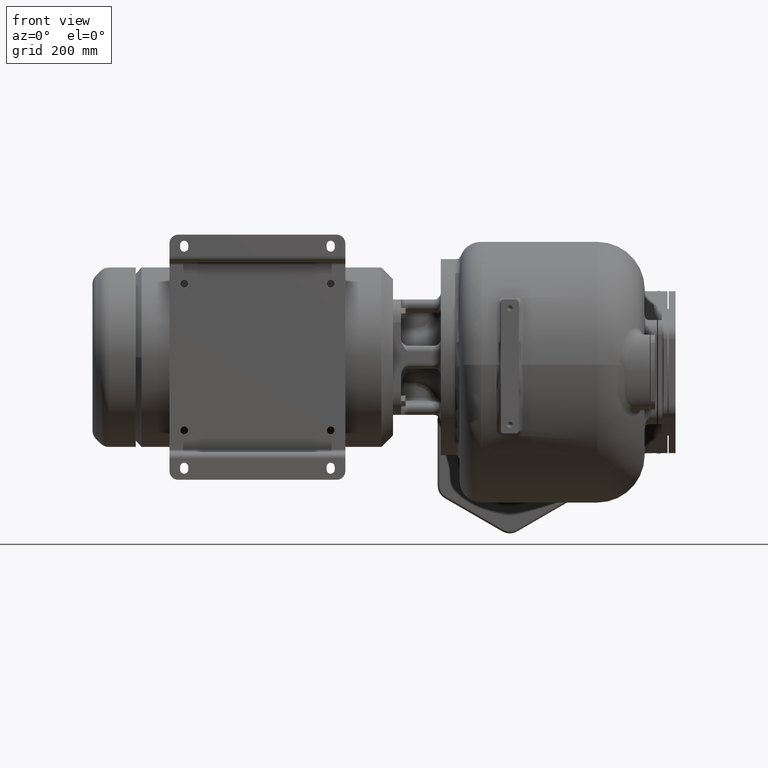
[diagram: clean part render]
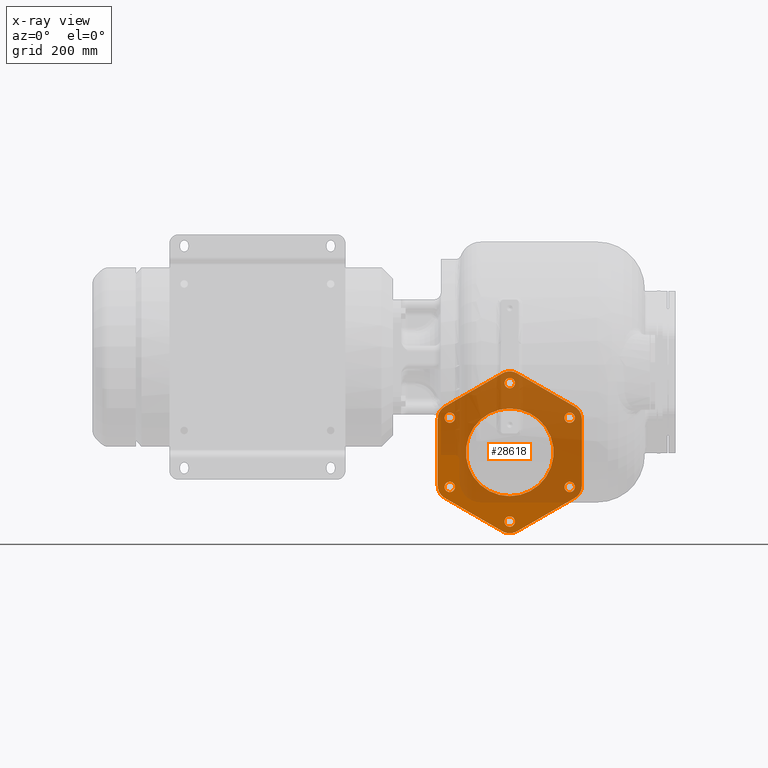
[diagram: x-ray — body ghosted, one internal face saturated and labeled with its STEP entity id]
A machine part, front view, then the same camera in x-ray: the body is ghosted and one INTERNAL B-rep face — a face not visible from any outside direction — is saturated and labeled: STEP entity #28618.
In plain terms, the highlighted planar face has unit normal (0, 1, 0).
Its self-contained STEP definition (entity closure, byte-faithful):
#28013=CARTESIAN_POINT('',(1.E2,5.52E2,-1.072649730810E2));
#28014=DIRECTION('',(0.E0,-1.E0,0.E0));
#28015=DIRECTION('',(1.E0,0.E0,0.E0));
#28016=AXIS2_PLACEMENT_3D('',#28013,#28014,#28015);
#28018=DIRECTION('',(0.E0,0.E0,1.E0));
#28019=VECTOR('',#28018,1.154700538379E2);
#28020=CARTESIAN_POINT('',(1.25E2,5.52E2,-2.227350269190E2));
#28021=LINE('',#28020,#28019);
#28022=CARTESIAN_POINT('',(1.E2,5.52E2,-2.227350269190E2));
#28023=DIRECTION('',(0.E0,-1.E0,0.E0));
#28024=DIRECTION('',(5.E-1,0.E0,-8.660254037844E-1));
#28025=AXIS2_PLACEMENT_3D('',#28022,#28023,#28024);
#28027=DIRECTION('',(8.660254037844E-1,0.E0,5.E-1));
#28028=VECTOR('',#28027,1.154700538379E2);
#28029=CARTESIAN_POINT('',(1.25E1,5.52E2,-3.021206889325E2));
#28030=LINE('',#28029,#28028);
#28031=CARTESIAN_POINT('',(-1.362119714437E-14,5.52E2,-2.804700538379E2));
#28032=DIRECTION('',(0.E0,-1.E0,0.E0));
#28033=DIRECTION('',(-5.E-1,0.E0,-8.660254037844E-1));
#28034=AXIS2_PLACEMENT_3D('',#28031,#28032,#28033);
#28036=DIRECTION('',(8.660254037844E-1,0.E0,-5.E-1));
#28037=VECTOR('',#28036,1.154700538379E2);
#28038=CARTESIAN_POINT('',(-1.125E2,5.52E2,-2.443856620136E2));
#28039=LINE('',#28038,#28037);
#28040=CARTESIAN_POINT('',(-1.E2,5.52E2,-2.227350269190E2));
#28041=DIRECTION('',(0.E0,-1.E0,0.E0));
#28042=DIRECTION('',(-1.E0,0.E0,0.E0));
#28043=AXIS2_PLACEMENT_3D('',#28040,#28041,#28042);
#28045=DIRECTION('',(0.E0,0.E0,-1.E0));
#28046=VECTOR('',#28045,1.154700538379E2);
#28047=CARTESIAN_POINT('',(-1.25E2,5.52E2,-1.072649730810E2));
#28048=LINE('',#28047,#28046);
#28049=CARTESIAN_POINT('',(-1.E2,5.52E2,-1.072649730810E2));
#28050=DIRECTION('',(0.E0,-1.E0,0.E0));
#28051=DIRECTION('',(-5.E-1,0.E0,8.660254037844E-1));
#28052=AXIS2_PLACEMENT_3D('',#28049,#28050,#28051);
#28054=DIRECTION('',(-8.660254037844E-1,0.E0,-5.E-1));
#28055=VECTOR('',#28054,1.154700538379E2);
#28056=CARTESIAN_POINT('',(-1.25E1,5.52E2,-2.787931106746E1));
#28057=LINE('',#28056,#28055);
#28058=CARTESIAN_POINT('',(1.362120489790E-14,5.52E2,-4.952994616208E1));
#28059=DIRECTION('',(0.E0,-1.E0,0.E0));
#28060=DIRECTION('',(5.E-1,0.E0,8.660254037844E-1));
#28061=AXIS2_PLACEMENT_3D('',#28058,#28059,#28060);
#28063=DIRECTION('',(-8.660254037844E-1,0.E0,5.E-1));
#28064=VECTOR('',#28063,1.154700538379E2);
#28065=CARTESIAN_POINT('',(1.125E2,5.52E2,-8.561433798643E1));
#28066=LINE('',#28065,#28064);
#28067=CARTESIAN_POINT('',(0.E0,5.52E2,-1.65E2));
#28068=DIRECTION('',(0.E0,-1.E0,0.E0));
#28069=DIRECTION('',(0.E0,0.E0,-1.E0));
#28070=AXIS2_PLACEMENT_3D('',#28067,#28068,#28069);
#28072=CARTESIAN_POINT('',(0.E0,5.52E2,-1.65E2));
#28073=DIRECTION('',(0.E0,-1.E0,0.E0));
#28074=DIRECTION('',(0.E0,0.E0,1.E0));
#28075=AXIS2_PLACEMENT_3D('',#28072,#28073,#28074);
#28077=CARTESIAN_POINT('',(-1.039230484541E2,5.52E2,-2.25E2));
#28078=DIRECTION('',(0.E0,1.E0,0.E0));
#28079=DIRECTION('',(0.E0,0.E0,1.E0));
#28080=AXIS2_PLACEMENT_3D('',#28077,#28078,#28079);
#28082=CARTESIAN_POINT('',(-1.039230484541E2,5.52E2,-2.25E2));
#28083=DIRECTION('',(0.E0,1.E0,0.E0));
#28084=DIRECTION('',(0.E0,0.E0,-1.E0));
#28085=AXIS2_PLACEMENT_3D('',#28082,#28083,#28084);
#28087=CARTESIAN_POINT('',(-2.842170249202E-14,5.52E2,-2.85E2));
#28088=DIRECTION('',(0.E0,1.E0,0.E0));
#28089=DIRECTION('',(-8.660254037844E-1,0.E0,5.E-1));
#28090=AXIS2_PLACEMENT_3D('',#28087,#28088,#28089);
#28092=CARTESIAN_POINT('',(-2.842170249202E-14,5.52E2,-2.85E2));
#28093=DIRECTION('',(0.E0,1.E0,0.E0));
#28094=DIRECTION('',(8.660254037844E-1,0.E0,-5.E-1));
#28095=AXIS2_PLACEMENT_3D('',#28092,#28093,#28094);
#28097=CARTESIAN_POINT('',(1.039230484541E2,5.52E2,-2.25E2));
#28098=DIRECTION('',(0.E0,1.E0,0.E0));
#28099=DIRECTION('',(-8.660254037844E-1,0.E0,-5.E-1));
#28100=AXIS2_PLACEMENT_3D('',#28097,#28098,#28099);
#28102=CARTESIAN_POINT('',(1.039230484541E2,5.52E2,-2.25E2));
#28103=DIRECTION('',(0.E0,1.E0,0.E0));
#28104=DIRECTION('',(8.660254037844E-1,0.E0,5.E-1));
#28105=AXIS2_PLACEMENT_3D('',#28102,#28103,#28104);
#28107=CARTESIAN_POINT('',(1.039230484541E2,5.52E2,-1.05E2));
#28108=DIRECTION('',(0.E0,1.E0,0.E0));
#28109=DIRECTION('',(0.E0,0.E0,-1.E0));
#28110=AXIS2_PLACEMENT_3D('',#28107,#28108,#28109);
#28112=CARTESIAN_POINT('',(1.039230484541E2,5.52E2,-1.05E2));
#28113=DIRECTION('',(0.E0,1.E0,0.E0));
#28114=DIRECTION('',(0.E0,0.E0,1.E0));
#28115=AXIS2_PLACEMENT_3D('',#28112,#28113,#28114);
#28117=CARTESIAN_POINT('',(7.105428663763E-14,5.52E2,-4.5E1));
#28118=DIRECTION('',(0.E0,1.E0,0.E0));
#28119=DIRECTION('',(8.660254037844E-1,0.E0,-5.E-1));
#28120=AXIS2_PLACEMENT_3D('',#28117,#28118,#28119);
#28122=CARTESIAN_POINT('',(7.105428663763E-14,5.52E2,-4.5E1));
#28123=DIRECTION('',(0.E0,1.E0,0.E0));
#28124=DIRECTION('',(-8.660254037844E-1,0.E0,5.E-1));
#28125=AXIS2_PLACEMENT_3D('',#28122,#28123,#28124);
#28127=CARTESIAN_POINT('',(-1.039230484541E2,5.52E2,-1.05E2));
#28128=DIRECTION('',(0.E0,1.E0,0.E0));
#28129=DIRECTION('',(8.660254037844E-1,0.E0,5.E-1));
#28130=AXIS2_PLACEMENT_3D('',#28127,#28128,#28129);
#28132=CARTESIAN_POINT('',(-1.039230484541E2,5.52E2,-1.05E2));
#28133=DIRECTION('',(0.E0,1.E0,0.E0));
#28134=DIRECTION('',(-8.660254037844E-1,0.E0,-5.E-1));
#28135=AXIS2_PLACEMENT_3D('',#28132,#28133,#28134);
#28185=CARTESIAN_POINT('',(-1.039230484541E2,5.52E2,-2.16E2));
#28187=VERTEX_POINT('',#28185);
#28189=CARTESIAN_POINT('',(-1.039230484541E2,5.52E2,-2.34E2));
#28191=VERTEX_POINT('',#28189);
#28193=CARTESIAN_POINT('',(-7.794228634060E0,5.52E2,-2.805E2));
#28195=VERTEX_POINT('',#28193);
#28197=CARTESIAN_POINT('',(7.794228634060E0,5.52E2,-2.895E2));
#28199=VERTEX_POINT('',#28197);
#28201=CARTESIAN_POINT('',(9.612881982007E1,5.52E2,-2.295E2));
#28203=VERTEX_POINT('',#28201);
#28205=CARTESIAN_POINT('',(1.117172770882E2,5.52E2,-2.205E2));
#28207=VERTEX_POINT('',#28205);
#28209=CARTESIAN_POINT('',(1.039230484541E2,5.52E2,-1.14E2));
#28211=VERTEX_POINT('',#28209);
#28213=CARTESIAN_POINT('',(1.039230484541E2,5.52E2,-9.6E1));
#28215=VERTEX_POINT('',#28213);
#28217=CARTESIAN_POINT('',(7.794228634060E0,5.52E2,-4.95E1));
#28219=VERTEX_POINT('',#28217);
#28221=CARTESIAN_POINT('',(-7.794228634060E0,5.52E2,-4.05E1));
#28223=VERTEX_POINT('',#28221);
#28225=CARTESIAN_POINT('',(-9.612881982007E1,5.52E2,-1.005E2));
#28227=VERTEX_POINT('',#28225);
#28229=CARTESIAN_POINT('',(-1.117172770882E2,5.52E2,-1.095E2));
#28231=VERTEX_POINT('',#28229);
#28233=CARTESIAN_POINT('',(0.E0,5.52E2,-2.41E2));
#28234=CARTESIAN_POINT('',(0.E0,5.52E2,-8.9E1));
#28235=VERTEX_POINT('',#28233);
#28236=VERTEX_POINT('',#28234);
#28245=CARTESIAN_POINT('',(1.25E2,5.52E2,-1.072649730810E2));
#28246=VERTEX_POINT('',#28245);
#28247=CARTESIAN_POINT('',(1.125E2,5.52E2,-8.561433798643E1));
#28248=VERTEX_POINT('',#28247);
#28253=CARTESIAN_POINT('',(1.25E1,5.52E2,-2.787931106746E1));
#28254=VERTEX_POINT('',#28253);
#28255=CARTESIAN_POINT('',(-1.25E1,5.52E2,-2.787931106746E1));
#28256=VERTEX_POINT('',#28255);
#28261=CARTESIAN_POINT('',(-1.125E2,5.52E2,-8.561433798643E1));
#28262=VERTEX_POINT('',#28261);
#28263=CARTESIAN_POINT('',(-1.25E2,5.52E2,-1.072649730810E2));
#28264=VERTEX_POINT('',#28263);
#28269=CARTESIAN_POINT('',(-1.25E2,5.52E2,-2.227350269190E2));
#28270=VERTEX_POINT('',#28269);
#28271=CARTESIAN_POINT('',(-1.125E2,5.52E2,-2.443856620136E2));
#28272=VERTEX_POINT('',#28271);
#28277=CARTESIAN_POINT('',(-1.25E1,5.52E2,-3.021206889325E2));
#28278=VERTEX_POINT('',#28277);
#28279=CARTESIAN_POINT('',(1.25E1,5.52E2,-3.021206889325E2));
#28280=VERTEX_POINT('',#28279);
#28285=CARTESIAN_POINT('',(1.125E2,5.52E2,-2.443856620136E2));
#28286=VERTEX_POINT('',#28285);
#28287=CARTESIAN_POINT('',(1.25E2,5.52E2,-2.227350269190E2));
#28288=VERTEX_POINT('',#28287);
#28559=CARTESIAN_POINT('',(0.E0,5.52E2,-1.65E2));
#28560=DIRECTION('',(0.E0,1.E0,0.E0));
#28561=DIRECTION('',(0.E0,0.E0,-1.E0));
#28562=AXIS2_PLACEMENT_3D('',#28559,#28560,#28561);
#28563=PLANE('',#28562);
#28564=ORIENTED_EDGE('',*,*,#28399,.F.);
#28565=ORIENTED_EDGE('',*,*,#28415,.F.);
#28566=ORIENTED_EDGE('',*,*,#28428,.F.);
#28567=ORIENTED_EDGE('',*,*,#28441,.F.);
#28568=ORIENTED_EDGE('',*,*,#28456,.F.);
#28569=ORIENTED_EDGE('',*,*,#28469,.F.);
#28570=ORIENTED_EDGE('',*,*,#28484,.F.);
#28571=ORIENTED_EDGE('',*,*,#28497,.F.);
#28572=ORIENTED_EDGE('',*,*,#28512,.F.);
#28573=ORIENTED_EDGE('',*,*,#28525,.F.);
#28574=ORIENTED_EDGE('',*,*,#28540,.F.);
#28575=ORIENTED_EDGE('',*,*,#28552,.F.);
#28576=EDGE_LOOP('',(#28564,#28565,#28566,#28567,#28568,#28569,#28570,#28571,
#28572,#28573,#28574,#28575));
#28577=FACE_OUTER_BOUND('',#28576,.F.);
#28579=ORIENTED_EDGE('',*,*,#28578,.T.);
#28581=ORIENTED_EDGE('',*,*,#28580,.T.);
#28582=EDGE_LOOP('',(#28579,#28581));
#28583=FACE_BOUND('',#28582,.F.);
#28585=ORIENTED_EDGE('',*,*,#28584,.F.);
#28587=ORIENTED_EDGE('',*,*,#28586,.F.);
#28588=EDGE_LOOP('',(#28585,#28587));
#28589=FACE_BOUND('',#28588,.F.);
#28591=ORIENTED_EDGE('',*,*,#28590,.F.);
#28593=ORIENTED_EDGE('',*,*,#28592,.F.);
#28594=EDGE_LOOP('',(#28591,#28593));
#28595=FACE_BOUND('',#28594,.F.);
#28597=ORIENTED_EDGE('',*,*,#28596,.F.);
#28599=ORIENTED_EDGE('',*,*,#28598,.F.);
#28600=EDGE_LOOP('',(#28597,#28599));
#28601=FACE_BOUND('',#28600,.F.);
#28603=ORIENTED_EDGE('',*,*,#28602,.F.);
#28605=ORIENTED_EDGE('',*,*,#28604,.F.);
#28606=EDGE_LOOP('',(#28603,#28605));
#28607=FACE_BOUND('',#28606,.F.);
#28608=ORIENTED_EDGE('',*,*,#28296,.F.);
#28609=ORIENTED_EDGE('',*,*,#28314,.F.);
#28610=EDGE_LOOP('',(#28608,#28609));
#28611=FACE_BOUND('',#28610,.F.);
#28613=ORIENTED_EDGE('',*,*,#28612,.F.);
#28615=ORIENTED_EDGE('',*,*,#28614,.F.);
#28616=EDGE_LOOP('',(#28613,#28615));
#28617=FACE_BOUND('',#28616,.F.);
#28618=ADVANCED_FACE('',(#28577,#28583,#28589,#28595,#28601,#28607,#28611,
#28617),#28563,.F.);
#28017=CIRCLE('',#28016,2.5E1);
#28026=CIRCLE('',#28025,2.5E1);
#28035=CIRCLE('',#28034,2.5E1);
#28044=CIRCLE('',#28043,2.5E1);
#28053=CIRCLE('',#28052,2.5E1);
#28062=CIRCLE('',#28061,2.5E1);
#28071=CIRCLE('',#28070,7.6E1);
#28076=CIRCLE('',#28075,7.6E1);
#28081=CIRCLE('',#28080,9.E0);
#28086=CIRCLE('',#28085,9.E0);
#28091=CIRCLE('',#28090,9.E0);
#28096=CIRCLE('',#28095,9.E0);
#28101=CIRCLE('',#28100,9.E0);
#28106=CIRCLE('',#28105,9.E0);
#28111=CIRCLE('',#28110,9.E0);
#28116=CIRCLE('',#28115,9.E0);
#28121=CIRCLE('',#28120,9.E0);
#28126=CIRCLE('',#28125,9.E0);
#28131=CIRCLE('',#28130,9.E0);
#28136=CIRCLE('',#28135,9.E0);
#28296=EDGE_CURVE('',#28219,#28223,#28121,.T.);
#28314=EDGE_CURVE('',#28223,#28219,#28126,.T.);
#28399=EDGE_CURVE('',#28246,#28248,#28017,.T.);
#28415=EDGE_CURVE('',#28288,#28246,#28021,.T.);
#28428=EDGE_CURVE('',#28286,#28288,#28026,.T.);
#28441=EDGE_CURVE('',#28280,#28286,#28030,.T.);
#28456=EDGE_CURVE('',#28278,#28280,#28035,.T.);
#28469=EDGE_CURVE('',#28272,#28278,#28039,.T.);
#28484=EDGE_CURVE('',#28270,#28272,#28044,.T.);
#28497=EDGE_CURVE('',#28264,#28270,#28048,.T.);
#28512=EDGE_CURVE('',#28262,#28264,#28053,.T.);
#28525=EDGE_CURVE('',#28256,#28262,#28057,.T.);
#28540=EDGE_CURVE('',#28254,#28256,#28062,.T.);
#28552=EDGE_CURVE('',#28248,#28254,#28066,.T.);
#28578=EDGE_CURVE('',#28235,#28236,#28071,.T.);
#28580=EDGE_CURVE('',#28236,#28235,#28076,.T.);
#28584=EDGE_CURVE('',#28187,#28191,#28081,.T.);
#28586=EDGE_CURVE('',#28191,#28187,#28086,.T.);
#28590=EDGE_CURVE('',#28195,#28199,#28091,.T.);
#28592=EDGE_CURVE('',#28199,#28195,#28096,.T.);
#28596=EDGE_CURVE('',#28203,#28207,#28101,.T.);
#28598=EDGE_CURVE('',#28207,#28203,#28106,.T.);
#28602=EDGE_CURVE('',#28211,#28215,#28111,.T.);
#28604=EDGE_CURVE('',#28215,#28211,#28116,.T.);
#28612=EDGE_CURVE('',#28227,#28231,#28131,.T.);
#28614=EDGE_CURVE('',#28231,#28227,#28136,.T.);